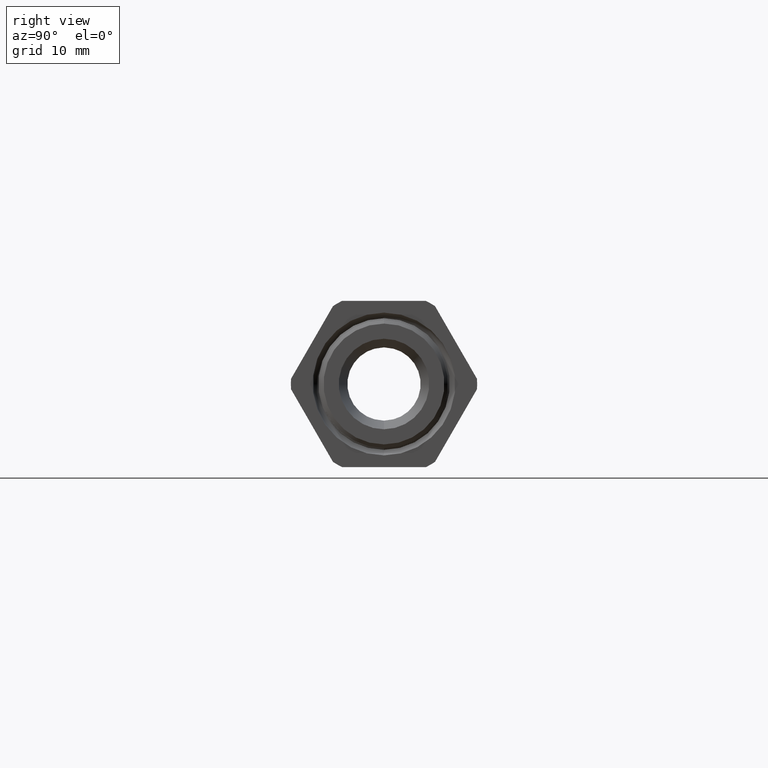
[diagram: clean part render]
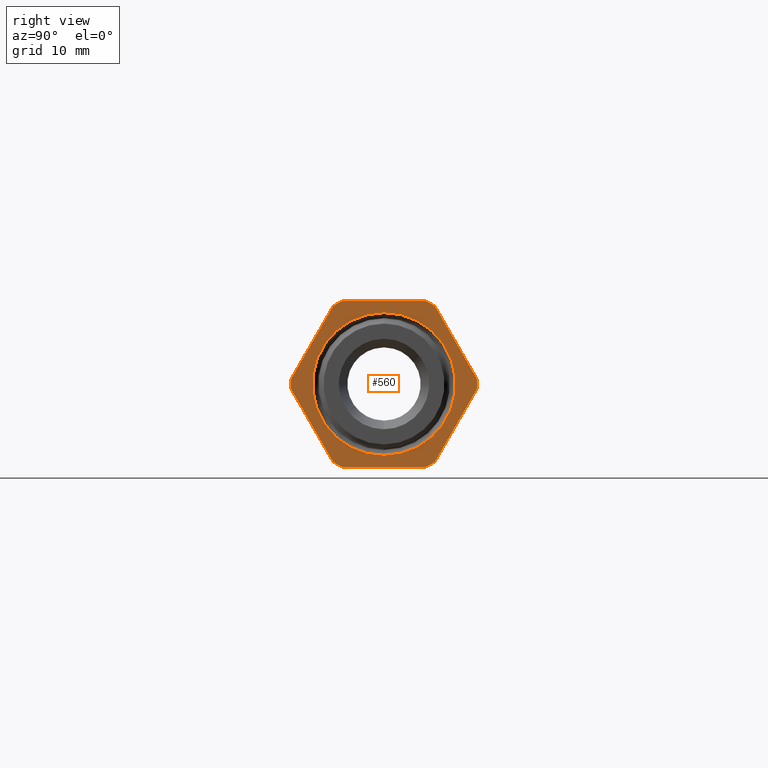
[diagram: same view with one face highlighted and labeled with its STEP entity id]
A machine part, right view. The second image highlights one B-rep face of the part: STEP entity #560.
In plain terms, the highlighted planar face has unit normal (-1, 0, 0).
Its self-contained STEP definition (entity closure, byte-faithful):
#120 = VERTEX_POINT ( 'NONE', #1575 ) ;
#445 = VERTEX_POINT ( 'NONE', #2023 ) ;
#447 = EDGE_CURVE ( 'NONE', #445, #525, #2022, .T. ) ;
#457 = VERTEX_POINT ( 'NONE', #2060 ) ;
#461 = VERTEX_POINT ( 'NONE', #2055 ) ;
#474 = VERTEX_POINT ( 'NONE', #2090 ) ;
#476 = EDGE_CURVE ( 'NONE', #474, #120, #2089, .T. ) ;
#484 = EDGE_LOOP ( 'NONE', ( #485, #487, #488, #490, #546, #548, #549, #551, #552, #554, #555, #534 ) ) ;
#485 = ORIENTED_EDGE ( 'NONE', *, *, #486, .T. ) ;
#486 = EDGE_CURVE ( 'NONE', #474, #457, #2132, .T. ) ;
#487 = ORIENTED_EDGE ( 'NONE', *, *, #520, .F. ) ;
#488 = ORIENTED_EDGE ( 'NONE', *, *, #489, .T. ) ;
#489 = EDGE_CURVE ( 'NONE', #461, #525, #2128, .T. ) ;
#490 = ORIENTED_EDGE ( 'NONE', *, *, #447, .F. ) ;
#493 = VERTEX_POINT ( 'NONE', #2120 ) ;
#495 = EDGE_CURVE ( 'NONE', #493, #518, #2119, .T. ) ;
#500 = VERTEX_POINT ( 'NONE', #2165 ) ;
#504 = VERTEX_POINT ( 'NONE', #2160 ) ;
#507 = VERTEX_POINT ( 'NONE', #2155 ) ;
#511 = VERTEX_POINT ( 'NONE', #2150 ) ;
#513 = EDGE_CURVE ( 'NONE', #511, #507, #2149, .T. ) ;
#518 = VERTEX_POINT ( 'NONE', #2197 ) ;
#520 = EDGE_CURVE ( 'NONE', #461, #457, #2196, .T. ) ;
#525 = VERTEX_POINT ( 'NONE', #2181 ) ;
#534 = ORIENTED_EDGE ( 'NONE', *, *, #476, .F. ) ;
#546 = ORIENTED_EDGE ( 'NONE', *, *, #547, .T. ) ;
#547 = EDGE_CURVE ( 'NONE', #445, #507, #2212, .T. ) ;
#548 = ORIENTED_EDGE ( 'NONE', *, *, #513, .F. ) ;
#549 = ORIENTED_EDGE ( 'NONE', *, *, #550, .T. ) ;
#550 = EDGE_CURVE ( 'NONE', #511, #518, #2208, .T. ) ;
#551 = ORIENTED_EDGE ( 'NONE', *, *, #495, .F. ) ;
#552 = ORIENTED_EDGE ( 'NONE', *, *, #553, .T. ) ;
#553 = EDGE_CURVE ( 'NONE', #493, #500, #2204, .T. ) ;
#554 = ORIENTED_EDGE ( 'NONE', *, *, #559, .F. ) ;
#555 = ORIENTED_EDGE ( 'NONE', *, *, #556, .T. ) ;
#556 = EDGE_CURVE ( 'NONE', #504, #120, #2267, .T. ) ;
#559 = EDGE_CURVE ( 'NONE', #504, #500, #2263, .T. ) ;
#560 = ADVANCED_FACE ( 'NONE', ( #2258, #2257 ), #2256, .F. ) ;
#561 = EDGE_LOOP ( 'NONE', ( #562, #563 ) ) ;
#562 = ORIENTED_EDGE ( 'NONE', *, *, #1187, .T. ) ;
#563 = ORIENTED_EDGE ( 'NONE', *, *, #1195, .T. ) ;
#1169 = VERTEX_POINT ( 'NONE', #7968 ) ;
#1176 = VERTEX_POINT ( 'NONE', #8018 ) ;
#1187 = EDGE_CURVE ( 'NONE', #1169, #1176, #8061, .T. ) ;
#1195 = EDGE_CURVE ( 'NONE', #1176, #1169, #8046, .T. ) ;
#1575 = CARTESIAN_POINT ( 'NONE',  ( 0.0000000000000000000, -0.3298736633726285800, 0.01864205495973485200 ) ) ;
#2018 = DIRECTION ( 'NONE',  ( 0.0000000000000000000, 0.0000000000000000000, 1.000000000000000000 ) ) ;
#2019 = DIRECTION ( 'NONE',  ( -1.000000000000000000, 0.0000000000000000000, 0.0000000000000000000 ) ) ;
#2020 = CARTESIAN_POINT ( 'NONE',  ( 0.0000000000000000000, 0.0000000000000000000, 0.0000000000000000000 ) ) ;
#2021 = AXIS2_PLACEMENT_3D ( 'NONE', #2020, #2019, #2018 ) ;
#2022 = CIRCLE ( 'NONE', #2021, 0.3304000000000000300 ) ;
#2023 = CARTESIAN_POINT ( 'NONE',  ( 0.0000000000000000000, 0.1810813248601902100, -0.2763579450402652800 ) ) ;
#2055 = CARTESIAN_POINT ( 'NONE',  ( 0.0000000000000000000, -0.1487923385124383400, -0.2949999999999998700 ) ) ;
#2060 = CARTESIAN_POINT ( 'NONE',  ( 0.0000000000000000000, -0.1810813248601904300, -0.2763579450402651700 ) ) ;
#2085 = DIRECTION ( 'NONE',  ( 0.0000000000000000000, 0.0000000000000000000, 1.000000000000000000 ) ) ;
#2086 = DIRECTION ( 'NONE',  ( -1.000000000000000000, 0.0000000000000000000, 0.0000000000000000000 ) ) ;
#2087 = CARTESIAN_POINT ( 'NONE',  ( 0.0000000000000000000, 0.0000000000000000000, 0.0000000000000000000 ) ) ;
#2088 = AXIS2_PLACEMENT_3D ( 'NONE', #2087, #2086, #2085 ) ;
#2089 = CIRCLE ( 'NONE', #2088, 0.3304000000000000300 ) ;
#2090 = CARTESIAN_POINT ( 'NONE',  ( 0.0000000000000000000, -0.3298736633726285200, -0.01864205495973509500 ) ) ;
#2115 = DIRECTION ( 'NONE',  ( 0.0000000000000000000, 0.0000000000000000000, 1.000000000000000000 ) ) ;
#2116 = DIRECTION ( 'NONE',  ( -1.000000000000000000, 0.0000000000000000000, 0.0000000000000000000 ) ) ;
#2117 = CARTESIAN_POINT ( 'NONE',  ( 0.0000000000000000000, 0.0000000000000000000, 0.0000000000000000000 ) ) ;
#2118 = AXIS2_PLACEMENT_3D ( 'NONE', #2117, #2116, #2115 ) ;
#2119 = CIRCLE ( 'NONE', #2118, 0.3304000000000000300 ) ;
#2120 = CARTESIAN_POINT ( 'NONE',  ( 0.0000000000000000000, 0.1487923385124382000, 0.2950000000000000400 ) ) ;
#2125 = DIRECTION ( 'NONE',  ( 0.0000000000000000000, 1.000000000000000000, 0.0000000000000000000 ) ) ;
#2126 = VECTOR ( 'NONE', #2125, 39.37007874015748100 ) ;
#2127 = CARTESIAN_POINT ( 'NONE',  ( 0.0000000000000000000, -0.1487923385124383400, -0.2949999999999999800 ) ) ;
#2128 = LINE ( 'NONE', #2127, #2126 ) ;
#2129 = DIRECTION ( 'NONE',  ( 0.0000000000000000000, 0.5000000000000002200, -0.8660254037844384900 ) ) ;
#2130 = VECTOR ( 'NONE', #2129, 39.37007874015749600 ) ;
#2131 = CARTESIAN_POINT ( 'NONE',  ( 0.0000000000000000000, -0.3298736633726285200, -0.01864205495973509500 ) ) ;
#2132 = LINE ( 'NONE', #2131, #2130 ) ;
#2145 = DIRECTION ( 'NONE',  ( 0.0000000000000000000, 0.0000000000000000000, 1.000000000000000000 ) ) ;
#2146 = DIRECTION ( 'NONE',  ( -1.000000000000000000, 0.0000000000000000000, 0.0000000000000000000 ) ) ;
#2147 = CARTESIAN_POINT ( 'NONE',  ( 0.0000000000000000000, 0.0000000000000000000, 0.0000000000000000000 ) ) ;
#2148 = AXIS2_PLACEMENT_3D ( 'NONE', #2147, #2146, #2145 ) ;
#2149 = CIRCLE ( 'NONE', #2148, 0.3304000000000000300 ) ;
#2150 = CARTESIAN_POINT ( 'NONE',  ( 0.0000000000000000000, 0.3298736633726285800, 0.01864205495973450200 ) ) ;
#2155 = CARTESIAN_POINT ( 'NONE',  ( 0.0000000000000000000, 0.3298736633726285800, -0.01864205495973480400 ) ) ;
#2160 = CARTESIAN_POINT ( 'NONE',  ( 0.0000000000000000000, -0.1810813248601900700, 0.2763579450402652800 ) ) ;
#2165 = CARTESIAN_POINT ( 'NONE',  ( 0.0000000000000000000, -0.1487923385124382800, 0.2950000000000000400 ) ) ;
#2181 = CARTESIAN_POINT ( 'NONE',  ( 0.0000000000000000000, 0.1487923385124383400, -0.2949999999999999800 ) ) ;
#2192 = DIRECTION ( 'NONE',  ( 0.0000000000000000000, 0.0000000000000000000, 1.000000000000000000 ) ) ;
#2193 = DIRECTION ( 'NONE',  ( -1.000000000000000000, 0.0000000000000000000, 0.0000000000000000000 ) ) ;
#2194 = CARTESIAN_POINT ( 'NONE',  ( 0.0000000000000000000, 0.0000000000000000000, 0.0000000000000000000 ) ) ;
#2195 = AXIS2_PLACEMENT_3D ( 'NONE', #2194, #2193, #2192 ) ;
#2196 = CIRCLE ( 'NONE', #2195, 0.3304000000000000300 ) ;
#2197 = CARTESIAN_POINT ( 'NONE',  ( 0.0000000000000000000, 0.1810813248601899900, 0.2763579450402654500 ) ) ;
#2201 = DIRECTION ( 'NONE',  ( 0.0000000000000000000, -1.000000000000000000, 0.0000000000000000000 ) ) ;
#2202 = VECTOR ( 'NONE', #2201, 39.37007874015748100 ) ;
#2203 = CARTESIAN_POINT ( 'NONE',  ( 0.0000000000000000000, 0.1487923385124382800, 0.2950000000000000400 ) ) ;
#2204 = LINE ( 'NONE', #2203, #2202 ) ;
#2205 = DIRECTION ( 'NONE',  ( 0.0000000000000000000, -0.5000000000000000000, 0.8660254037844386000 ) ) ;
#2206 = VECTOR ( 'NONE', #2205, 39.37007874015748900 ) ;
#2207 = CARTESIAN_POINT ( 'NONE',  ( 0.0000000000000000000, 0.3298736633726285800, 0.01864205495973449800 ) ) ;
#2208 = LINE ( 'NONE', #2207, #2206 ) ;
#2209 = DIRECTION ( 'NONE',  ( 0.0000000000000000000, 0.5000000000000002200, 0.8660254037844384900 ) ) ;
#2210 = VECTOR ( 'NONE', #2209, 39.37007874015748900 ) ;
#2211 = CARTESIAN_POINT ( 'NONE',  ( 0.0000000000000000000, 0.1810813248601901800, -0.2763579450402652800 ) ) ;
#2212 = LINE ( 'NONE', #2211, #2210 ) ;
#2252 = DIRECTION ( 'NONE',  ( 0.0000000000000000000, 0.0000000000000000000, 1.000000000000000000 ) ) ;
#2253 = DIRECTION ( 'NONE',  ( -1.000000000000000000, 0.0000000000000000000, 0.0000000000000000000 ) ) ;
#2254 = CARTESIAN_POINT ( 'NONE',  ( 3.487598135429819200E-017, 0.3304000000000000300, 0.0000000000000000000 ) ) ;
#2255 = AXIS2_PLACEMENT_3D ( 'NONE', #2254, #2253, #2252 ) ;
#2256 = PLANE ( 'NONE',  #2255 ) ;
#2257 = FACE_OUTER_BOUND ( 'NONE', #484, .T. ) ;
#2258 = FACE_BOUND ( 'NONE', #561, .T. ) ;
#2259 = DIRECTION ( 'NONE',  ( 0.0000000000000000000, 0.0000000000000000000, 1.000000000000000000 ) ) ;
#2260 = DIRECTION ( 'NONE',  ( -1.000000000000000000, 0.0000000000000000000, 0.0000000000000000000 ) ) ;
#2261 = CARTESIAN_POINT ( 'NONE',  ( 0.0000000000000000000, 0.0000000000000000000, 0.0000000000000000000 ) ) ;
#2262 = AXIS2_PLACEMENT_3D ( 'NONE', #2261, #2260, #2259 ) ;
#2263 = CIRCLE ( 'NONE', #2262, 0.3304000000000000300 ) ;
#2264 = DIRECTION ( 'NONE',  ( 0.0000000000000000000, -0.5000000000000004400, -0.8660254037844382600 ) ) ;
#2265 = VECTOR ( 'NONE', #2264, 39.37007874015748900 ) ;
#2266 = CARTESIAN_POINT ( 'NONE',  ( 0.0000000000000000000, -0.1810813248601901000, 0.2763579450402652800 ) ) ;
#2267 = LINE ( 'NONE', #2266, #2265 ) ;
#7968 = CARTESIAN_POINT ( 'NONE',  ( 3.487598135429819200E-017, 0.0000000000000000000, 0.2533542799999999300 ) ) ;
#7999 = CARTESIAN_POINT ( 'NONE',  ( 3.487598135429819200E-017, 0.0000000000000000000, 0.0000000000000000000 ) ) ;
#8018 = CARTESIAN_POINT ( 'NONE',  ( 3.487598135429819200E-017, 3.102695080522822500E-017, -0.2533542799999999300 ) ) ;
#8042 = DIRECTION ( 'NONE',  ( 0.0000000000000000000, 0.0000000000000000000, 1.000000000000000000 ) ) ;
#8043 = DIRECTION ( 'NONE',  ( -1.000000000000000000, 0.0000000000000000000, 0.0000000000000000000 ) ) ;
#8044 = CARTESIAN_POINT ( 'NONE',  ( 3.487598135429819200E-017, 0.0000000000000000000, 0.0000000000000000000 ) ) ;
#8045 = AXIS2_PLACEMENT_3D ( 'NONE', #8044, #8043, #8042 ) ;
#8046 = CIRCLE ( 'NONE', #8045, 0.2533542799999999900 ) ;
#8058 = DIRECTION ( 'NONE',  ( 0.0000000000000000000, 0.0000000000000000000, 1.000000000000000000 ) ) ;
#8059 = DIRECTION ( 'NONE',  ( -1.000000000000000000, 0.0000000000000000000, 0.0000000000000000000 ) ) ;
#8060 = AXIS2_PLACEMENT_3D ( 'NONE', #7999, #8059, #8058 ) ;
#8061 = CIRCLE ( 'NONE', #8060, 0.2533542799999999900 ) ;